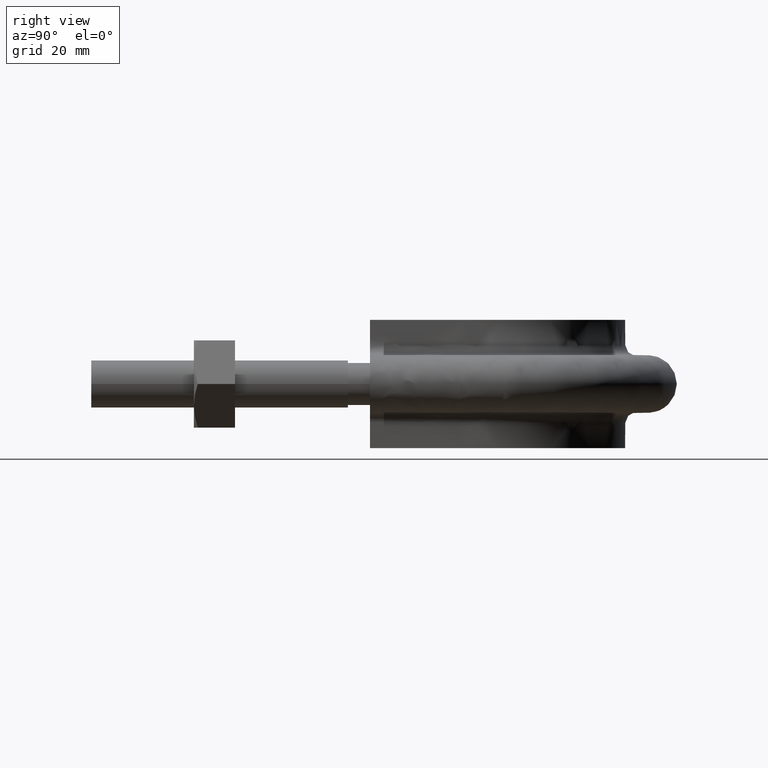
[diagram: clean part render]
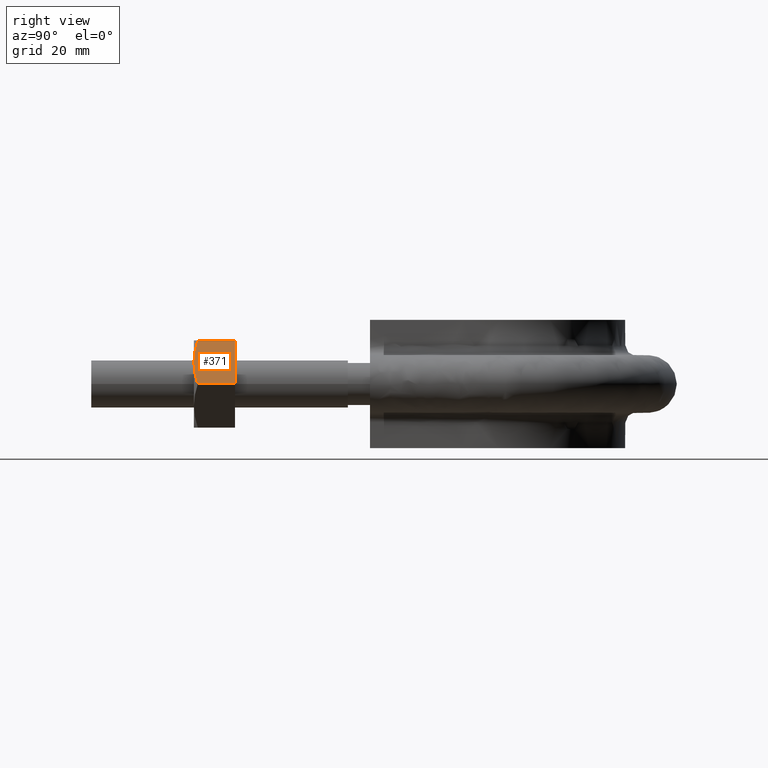
[diagram: same view with one face highlighted and labeled with its STEP entity id]
A machine part, right view. The second image highlights one B-rep face of the part: STEP entity #371.
In plain terms, the highlighted planar face has unit normal (-0.866, 0, -0.5).
Its self-contained STEP definition (entity closure, byte-faithful):
#371 = ADVANCED_FACE( '', ( #519 ), #520, .F. );
#519 = FACE_OUTER_BOUND( '', #1518, .T. );
#520 = PLANE( '', #1519 );
#1518 = EDGE_LOOP( '', ( #1945, #1946, #1947, #1948, #1949 ) );
#1519 = AXIS2_PLACEMENT_3D( '', #1950, #1951, #1952 );
#1945 = ORIENTED_EDGE( '', *, *, #2215, .F. );
#1946 = ORIENTED_EDGE( '', *, *, #2216, .F. );
#1947 = ORIENTED_EDGE( '', *, *, #2217, .F. );
#1948 = ORIENTED_EDGE( '', *, *, #2218, .F. );
#1949 = ORIENTED_EDGE( '', *, *, #2219, .F. );
#1950 = CARTESIAN_POINT( '', ( 35.9074772881143, 27.9999999999973, 8.49999999999858 ) );
#1951 = DIRECTION( '', ( -0.866025403784584, 3.65183836636958E-016, -0.499999999999748 ) );
#1952 = DIRECTION( '', ( -0.499999999999748, 0.000000000000000, 0.866025403784584 ) );
#2215 = EDGE_CURVE( '', #2435, #2436, #2437, .T. );
#2216 = EDGE_CURVE( '', #2438, #2435, #2439, .T. );
#2217 = EDGE_CURVE( '', #2440, #2438, #2441, .F. );
#2218 = EDGE_CURVE( '', #2442, #2440, #2443, .T. );
#2219 = EDGE_CURVE( '', #2436, #2442, #2444, .T. );
#2435 = VERTEX_POINT( '', #3013 );
#2436 = VERTEX_POINT( '', #3014 );
#2437 = B_SPLINE_CURVE_WITH_KNOTS( '', 3, ( #3015, #3016, #3017, #3018, #3019, #3020 ), .UNSPECIFIED., .F., .F., ( 4, 2, 4 ), ( 1.22969749649977E-017, 0.00246745482903606, 0.00493490965807211 ), .UNSPECIFIED. );
#2438 = VERTEX_POINT( '', #3021 );
#2439 = B_SPLINE_CURVE_WITH_KNOTS( '', 3, ( #3022, #3023, #3024, #3025, #3026, #3027 ), .UNSPECIFIED., .F., .F., ( 4, 2, 4 ), ( 1.17782226292725E-017, 0.00246745482903605, 0.00493490965807209 ), .UNSPECIFIED. );
#2440 = VERTEX_POINT( '', #3028 );
#2441 = LINE( '', #3029, #3030 );
#2442 = VERTEX_POINT( '', #3031 );
#2443 = LINE( '', #3032, #3033 );
#2444 = LINE( '', #3034, #3035 );
#3013 = CARTESIAN_POINT( '', ( 38.3612159321690, 19.9999999999973, 4.24999999999786 ) );
#3014 = CARTESIAN_POINT( '', ( 35.9224662525188, 20.7505553499438, 8.47403835209718 ) );
#3015 = CARTESIAN_POINT( '', ( 38.3612159321690, 19.9999999999973, 4.24999999999785 ) );
#3016 = CARTESIAN_POINT( '', ( 37.9451329570738, 19.9999999999973, 4.97067685302755 ) );
#3017 = CARTESIAN_POINT( '', ( 37.5345628083266, 20.0716504305263, 5.68180521072940 ) );
#3018 = CARTESIAN_POINT( '', ( 36.7224943443384, 20.3328582843680, 7.08834904958230 ) );
#3019 = CARTESIAN_POINT( '', ( 36.3209300788314, 20.5215585493629, 7.78387875994495 ) );
#3020 = CARTESIAN_POINT( '', ( 35.9224662525188, 20.7505553499438, 8.47403835209717 ) );
#3021 = CARTESIAN_POINT( '', ( 40.7999656118192, 20.7505553499438, 0.0259616478985554 ) );
#3022 = CARTESIAN_POINT( '', ( 40.7999656118192, 20.7505553499438, 0.0259616478985471 ) );
#3023 = CARTESIAN_POINT( '', ( 40.4015017855066, 20.5215585493630, 0.716121240050761 ) );
#3024 = CARTESIAN_POINT( '', ( 39.9999375199996, 20.3328582843680, 1.41165095041343 ) );
#3025 = CARTESIAN_POINT( '', ( 39.1878690560114, 20.0716504305263, 2.81819478926632 ) );
#3026 = CARTESIAN_POINT( '', ( 38.7772989072641, 19.9999999999973, 3.52932314696816 ) );
#3027 = CARTESIAN_POINT( '', ( 38.3612159321690, 19.9999999999973, 4.24999999999785 ) );
#3028 = CARTESIAN_POINT( '', ( 40.7999656118192, 27.9999999999973, 0.0259616478985609 ) );
#3029 = CARTESIAN_POINT( '', ( 40.7999656118192, 27.9999999999973, 0.0259616478985583 ) );
#3030 = VECTOR( '', #3315, 1000.00000000000 );
#3031 = CARTESIAN_POINT( '', ( 35.9224662525188, 27.9999999999973, 8.47403835209719 ) );
#3032 = CARTESIAN_POINT( '', ( 35.9112159321702, 27.9999999999973, 8.49352447854232 ) );
#3033 = VECTOR( '', #3316, 1000.00000000000 );
#3034 = CARTESIAN_POINT( '', ( 35.9224662525188, 27.9999999999973, 8.47403835209719 ) );
#3035 = VECTOR( '', #3317, 1000.00000000000 );
#3315 = DIRECTION( '', ( 2.44921270764476E-016, 1.00000000000000, 3.06151588455594E-016 ) );
#3316 = DIRECTION( '', ( 0.499999999999748, 1.42674417629372E-016, -0.866025403784584 ) );
#3317 = DIRECTION( '', ( 2.44921270764476E-016, 1.00000000000000, 3.06151588455594E-016 ) );